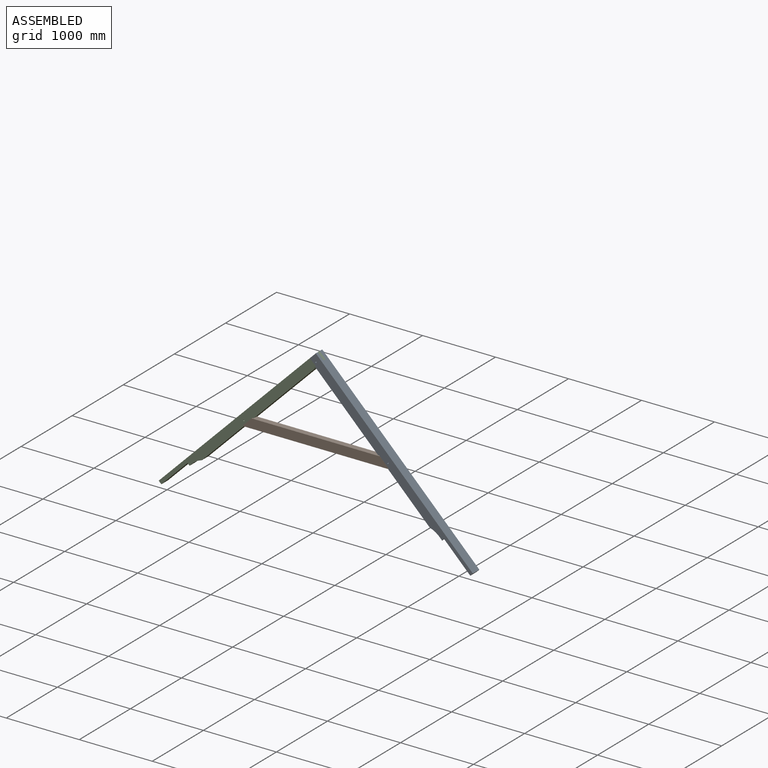
[diagram: assembled view]
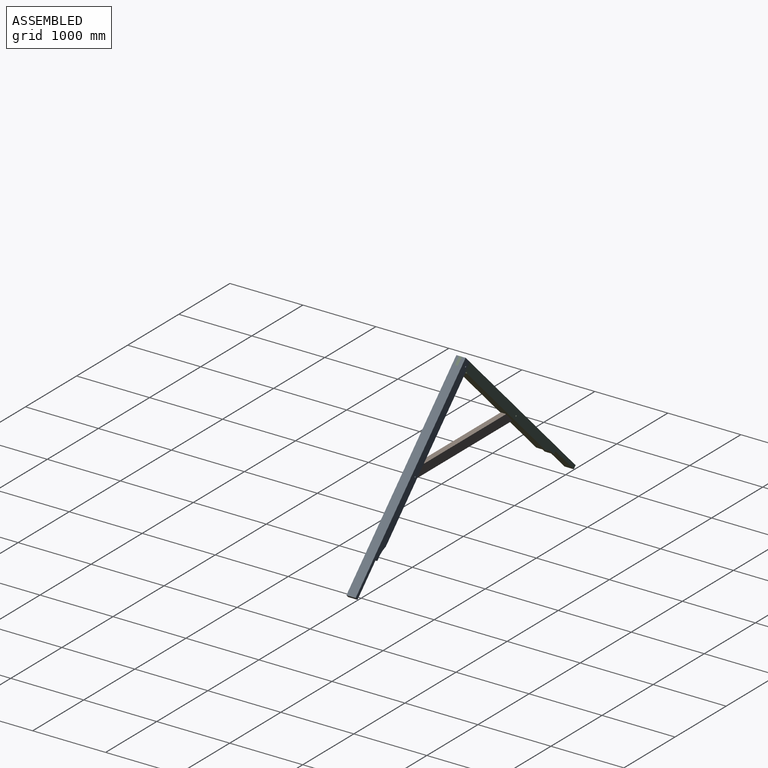
[diagram: assembled view, second angle]
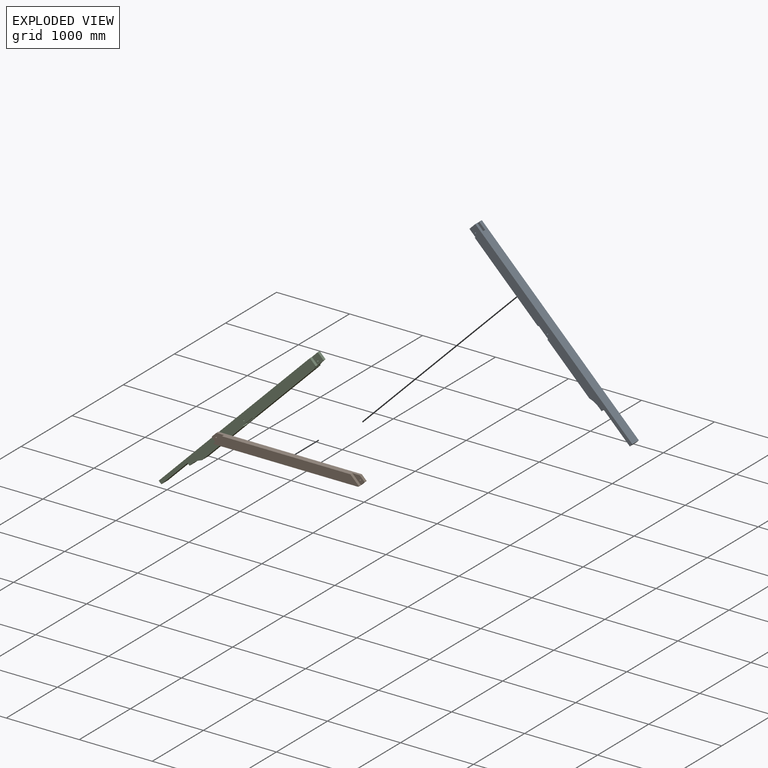
[diagram: exploded view]
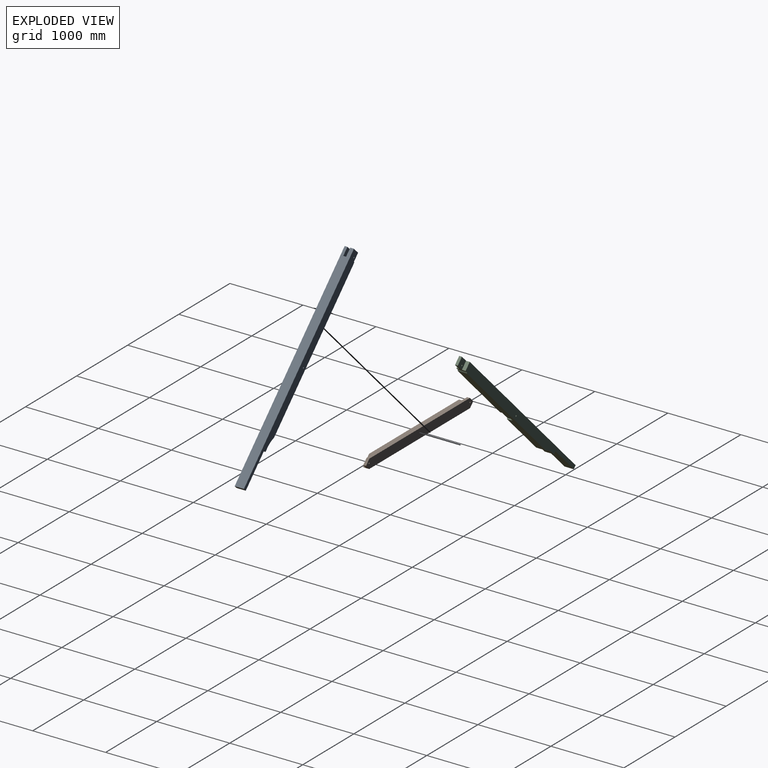
[diagram: exploded view, second angle]
ASSEMBLY  parts=3 mates=6
PART A: 27 faces, bbox 127x127x3043.2 mm
  f0: plane 177.8x38.1mm, normal (0,-1,0), area 6774.2mm2, adj f4,f19,f20,f22
  f1: plane 114.3x50.8mm, normal (0,0,1), area 5806.4mm2, adj f2,f3,f5,f15
  f2: plane 114.3x50.8mm, normal (0,-1,0), area 5806.4mm2, adj f1,f5,f13,f15
  f3: plane 3043.22x127mm, normal (0,1,0), area 382134.7mm2, adj f1,f4,f5,f7,f8,f13,f15,f16
  f4: plane 3043.22x127mm, normal (1,0,0), area 337686.6mm2, adj f0,f3,f6,f7,f8,f9,f10,f11
  f5: plane 3043.22x127mm, normal (-1,0,0), area 340025.3mm2, adj f1,f2,f3,f6,f8,f9,f10,f11
  f6: plane 2222.56x127mm, normal (0,-1,0), area 267749.5mm2, adj f4,f5,f12,f13,f19,f20,f21
  f7: plane 114.3x38.1mm, normal (0,0,1), area 4354.8mm2, adj f3,f4,f14,f16
  f8: plane 127x50.8mm, normal (0,0,-1), area 6451.6mm2, adj f3,f4,f5,f9
  f9: plane 508x127mm, normal (0,-1,0), area 64516mm2, adj f4,f5,f8,f10
  f10: plane 127x38.1mm, normal (0,0,-1), area 4838.7mm2, adj f4,f5,f9,f11
  f11: plane 127x50.8mm, normal (0,-1,0), area 6451.6mm2, adj f4,f5,f10,f12
  f12: cylinder r=304.8mm len=147.56mm, axis (1,0,0), area 19562.3mm2, adj f4,f5,f6,f11
  f13: plane 127x127mm, normal (0,0,1), area 5967.7mm2, adj f2,f3,f4,f5,f6,f14,f15,f16
  f14: plane 114.3x38.1mm, normal (0,-1,0), area 4354.8mm2, adj f4,f7,f13,f16
  f15: plane 114.3x114.3mm, normal (1,0,0), area 12779.5mm2, adj f1,f2,f3,f13,f18
  f16: plane 114.3x114.3mm, normal (-1,0,0), area 12779.5mm2, adj f3,f7,f13,f14,f17
  f17: cylinder r=9.53mm len=38.1mm, axis (1,0,0), area 2280.2mm2, adj f4,f16
  f18: cylinder r=9.53mm len=50.8mm, axis (1,0,0), area 3040.2mm2, adj f5,f15
  f19: plane 76.2x12.7mm, normal (0,-0.71,-0.71), area 1368.6mm2, adj f0,f4,f6,f21,f23
  f20: plane 91.95x76.2mm, normal (0,0,1), area 3987.1mm2, adj f0,f4,f6,f21,f22,f24
  f21: plane 190.5x91.95mm, normal (1,0,0), area 16144mm2, adj f6,f19,f20,f23,f24,f26
  f22: plane 177.8x79.25mm, normal (-1,0,0), area 13805.3mm2, adj f0,f20,f23,f24,f25
  f23: plane 79.25x38.1mm, normal (0,0,-1), area 3019.3mm2, adj f19,f21,f22,f24
  f24: plane 177.8x38.1mm, normal (0,-1,0), area 6774.2mm2, adj f20,f21,f22,f23
  f25: cylinder r=9.53mm len=38.1mm, axis (1,0,0), area 2280.2mm2, adj f4,f22
  f26: cylinder r=9.53mm len=50.8mm, axis (1,0,0), area 3040.2mm2, adj f5,f21
PART B: 14 faces, bbox 2096.8x76.2x127 mm
  f0: plane 2096.84x127mm, normal (0,1,0), area 257655.7mm2, adj f1,f2,f6,f7,f8,f11,f12,f13
  f1: plane 1965.6x76.2mm, normal (0,0,1), area 141895.7mm2, adj f0,f3,f4,f5,f7,f9,f10,f12
  f2: plane 1974.09x76.2mm, normal (0,0,-1), area 150425.5mm2, adj f0,f3,f6,f11
  f3: plane 1993.39x127mm, normal (0,-1,0), area 239297.1mm2, adj f1,f2,f5,f6,f9,f11
  f4: plane 169.07x117.35mm, normal (0,-1,0), area 9179.3mm2, adj f1,f5,f6,f7,f8
  f5: plane 117.35x117.35mm, normal (-0.71,0,0.71), area 6322.9mm2, adj f1,f3,f4,f6
  f6: plane 76.2x61.38mm, normal (-0.71,0,-0.71), area 3827.2mm2, adj f0,f2,f3,f4,f5,f7
  f7: plane 65.62x65.62mm, normal (-0.71,0,0.71), area 3535.8mm2, adj f0,f1,f4,f6
  f8: cylinder r=9.53mm len=38.1mm, axis (0,-1,0), area 2280.2mm2, adj f0,f4
  f9: plane 117.35x117.35mm, normal (0.71,0,0.71), area 6322.9mm2, adj f1,f3,f10,f11
  f10: plane 169.07x117.35mm, normal (0,-1,0), area 9179.3mm2, adj f1,f9,f11,f12,f13
  f11: plane 76.2x61.38mm, normal (0.71,0,-0.71), area 3827.2mm2, adj f0,f2,f3,f9,f10,f12
  f12: plane 65.62x65.62mm, normal (0.71,0,0.71), area 3535.8mm2, adj f0,f1,f10,f11
  f13: cylinder r=9.53mm len=38.1mm, axis (0,-1,0), area 2280.2mm2, adj f0,f10
PART C: 26 faces, bbox 127x127x3043.2 mm
  f0: plane 177.8x38.1mm, normal (0,-1,0), area 6774.2mm2, adj f4,f18,f19,f22
  f1: plane 3043.22x127mm, normal (0,1,0), area 376328.3mm2, adj f2,f3,f4,f6,f13,f14,f15,f16
  f2: plane 2928.93x127mm, normal (1,0,0), area 326681.3mm2, adj f1,f3,f5,f7,f8,f9,f10,f11
  f3: plane 127x50.8mm, normal (0,0,-1), area 6451.6mm2, adj f1,f2,f4,f7
  f4: plane 2928.93x127mm, normal (-1,0,0), area 324342.6mm2, adj f0,f1,f3,f5,f7,f8,f9,f10
  f5: plane 2171.76x127mm, normal (0,-1,0), area 261297.9mm2, adj f2,f4,f10,f12,f18,f19,f20
  f6: plane 114.3x38.1mm, normal (0,0,1), area 4354.8mm2, adj f1,f11,f13,f15
  f7: plane 508x127mm, normal (0,-1,0), area 64516mm2, adj f2,f3,f4,f8
  f8: plane 127x38.1mm, normal (0,0,-1), area 4838.7mm2, adj f2,f4,f7,f9
  f9: plane 127x50.8mm, normal (0,-1,0), area 6451.6mm2, adj f2,f4,f8,f10
  f10: cylinder r=304.8mm len=147.56mm, axis (1,0,0), area 19562.3mm2, adj f2,f4,f5,f9
  f11: plane 152.4x127mm, normal (0,-1,0), area 9193.5mm2, adj f2,f4,f6,f12,f13,f14,f15,f16
  f12: plane 127x12.7mm, normal (0,-0.71,0.71), area 2281mm2, adj f2,f4,f5,f11
  f13: plane 114.3x114.3mm, normal (1,0,0), area 12779.5mm2, adj f1,f6,f11,f14,f17
  f14: plane 114.3x50.8mm, normal (0,0,1), area 5806.4mm2, adj f1,f2,f11,f13
  f15: plane 114.3x114.3mm, normal (-1,0,0), area 12779.5mm2, adj f1,f6,f11,f16,f17
  f16: plane 114.3x38.1mm, normal (0,0,1), area 4354.8mm2, adj f1,f4,f11,f15
  f17: cylinder r=9.53mm len=38.1mm, axis (-1,0,0), area 2280.2mm2, adj f13,f15
  f18: plane 76.2x12.7mm, normal (0,-0.71,-0.71), area 1368.6mm2, adj f0,f4,f5,f20,f21
  f19: plane 91.95x76.2mm, normal (0,0,1), area 3987.1mm2, adj f0,f4,f5,f20,f22,f23
  f20: plane 190.5x91.95mm, normal (-1,0,0), area 16144mm2, adj f5,f18,f19,f21,f23,f25
  f21: plane 79.25x38.1mm, normal (0,0,-1), area 3019.3mm2, adj f18,f20,f22,f23
  f22: plane 177.8x79.25mm, normal (1,0,0), area 13805.3mm2, adj f0,f19,f21,f23,f24
  f23: plane 177.8x38.1mm, normal (0,-1,0), area 6774.2mm2, adj f19,f20,f21,f22
  f24: cylinder r=9.53mm len=38.1mm, axis (-1,0,0), area 2280.2mm2, adj f4,f22
  f25: cylinder r=9.53mm len=50.8mm, axis (-1,0,0), area 3040.2mm2, adj f2,f20
PLACE A rot(axis=(0.36,-0.36,-0.86),98.4deg) t=(71.32,-45.64,-77.8)mm fixed
PLACE B t=(71.2,-45.64,-1118.9)mm
PLACE C rot(axis=(0.36,0.36,0.86),98.4deg) t=(71.32,81.36,-77.8)mm
MATE planar A.f14 <-> C.f16  axis (-0.71,0,-0.71) through (30.9,-26.59,-199.03)mm
MATE planar C.f15 <-> A.f16  axis (0,-1,0) through (71.32,-7.54,-158.02)mm
MATE planar B.f4 <-> C.f22  axis (0,-1,0) through (-901.51,-7.54,-1165.63)mm
MATE planar C.f11 <-> A.f13  axis (0.71,0,-0.71) through (83.37,14.85,-227.39)mm
MATE planar C.f0 <-> B.f5  axis (0.71,0,-0.71) through (-862.63,-26.59,-1173.39)mm
MATE planar C.f19 <-> B.f6  axis (0.71,0,0.71) through (-945.62,6.88,-1216.12)mm
